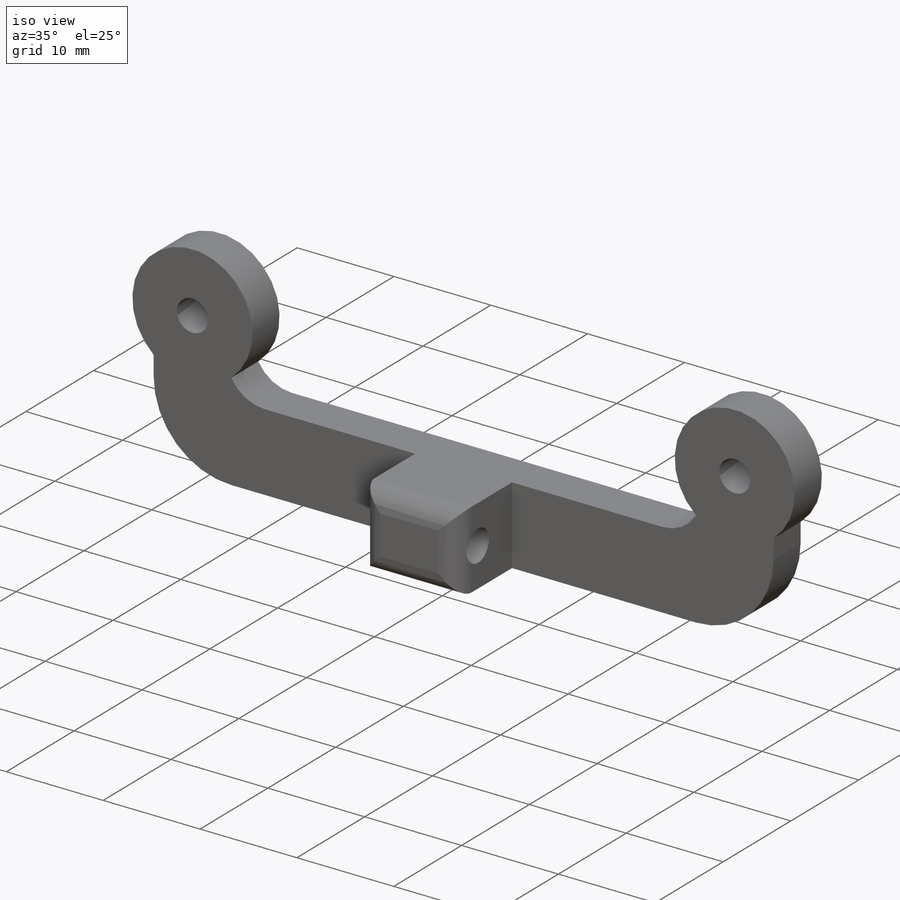
[diagram: iso view]
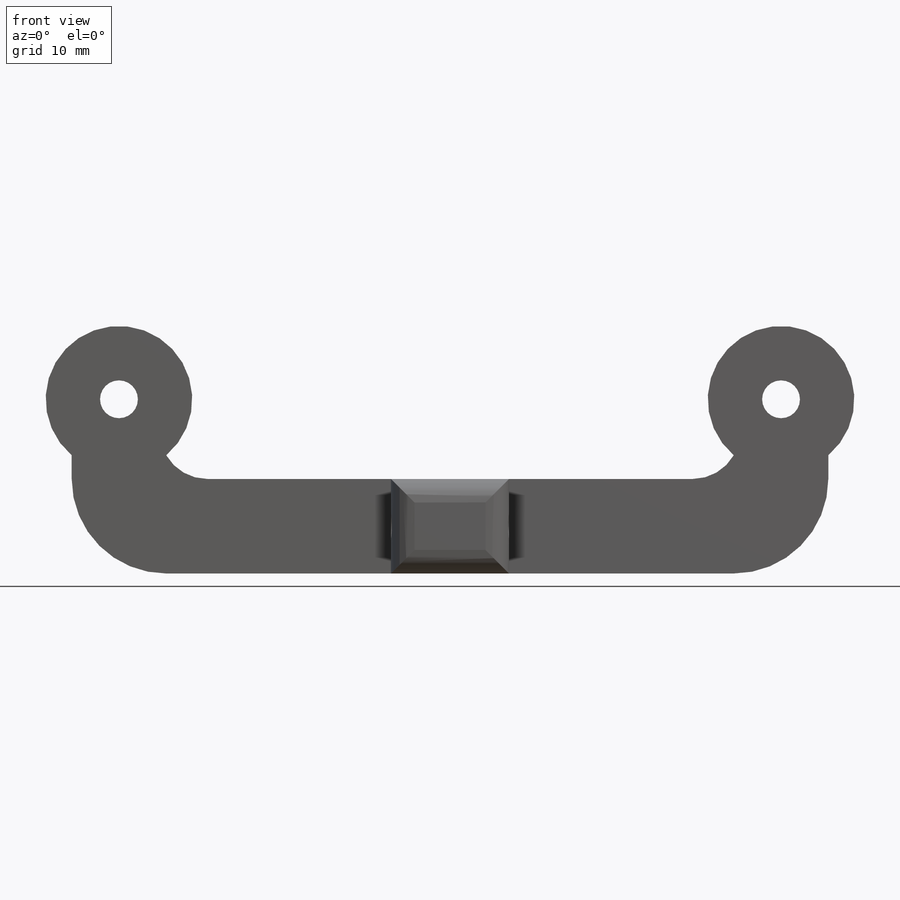
[diagram: front view]
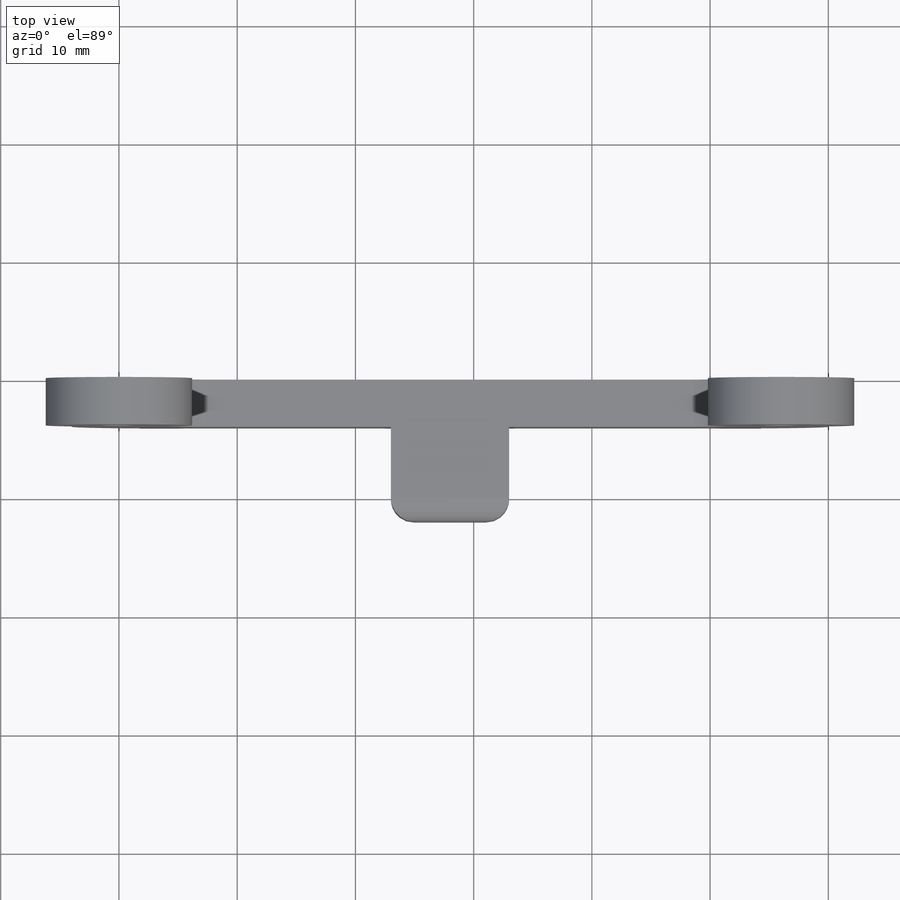
[diagram: top view]
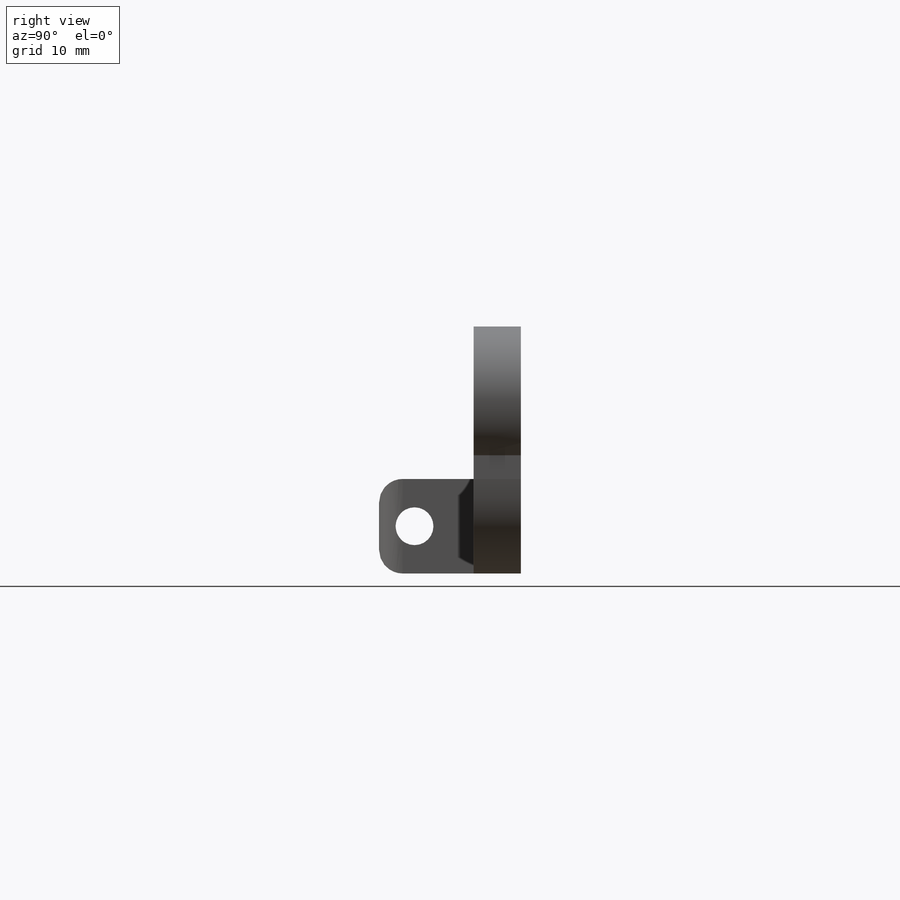
[diagram: right view]
SOLIDWORKS PART (.sldprt)
format: sldprt  version: not decoded by parser v0  size: 351,232 bytes
history: native  units: mm
features: plane x3, sketch x3, fillet x3, extrude x2, material x1, cut_extrude x1 (+8 scaffold rows collapsed)
feature tree (21):
  scaffold x8  (default folders/planes/origin — collapsed)
  material  "Material <sin especificar>"
  plane  "Alzado"
  plane  "Planta"
  plane  "Vista lateral"
  sketch  "Croquis1"  dims[c1.D1=3.2mm c1.D3=3.1mm c1.D4=12.4mm c2.D3=8.0mm c2.D4=8.0mm c2.D5=8.0mm c2.D6=2.0mm c2.D2=2.0]
  extrude  "Saliente-Extruir1"  Depth=4mm
  sketch  "Croquis2"  dims[c1.D1=8.0mm c1.D2=~15.310123mm c2.D1=10.0mm c2.D2=19.0mm]
  extrude  "Saliente-Extruir2"  Depth=8mm
  sketch  "Croquis3"  dims[c1.D1=3.2mm c1.D2=3.2mm c1.D3=3.2mm c2.D1=5.0mm c2.D2=4.0mm]
  cut_extrude  "Cortar-Extruir1"  [1 undecoded]
  fillet  "Redondeo1"  Radius=2mm
  fillet  "Redondeo2"  Radius=8mm
  fillet  "Redondeo3"  Radius=4mm
decode coverage: 8 of 9 modeling features carry decoded parameters
note: ~ marks probable driven/reference dimensions
note: 1 parameter value undecoded
note: suppression state not decoded; provenance and decode notes live in map.json
